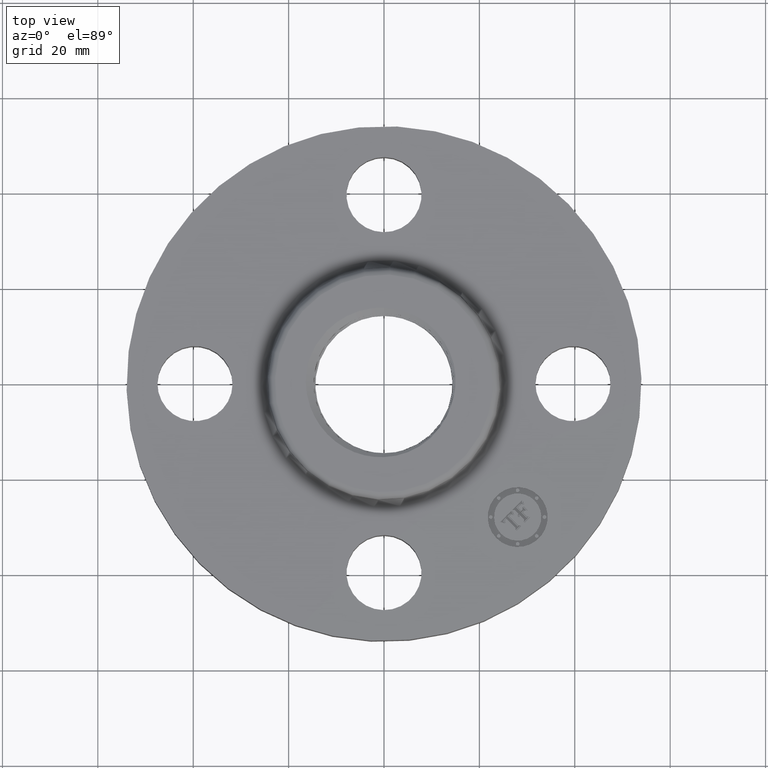
[diagram: clean part render]
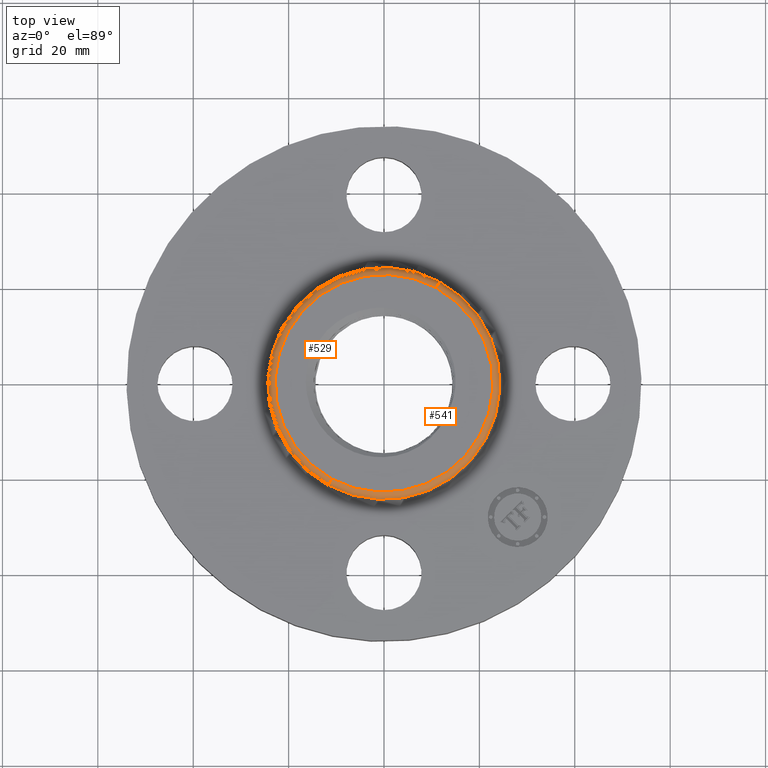
[diagram: same view with one multi-face feature highlighted, each face labeled with its STEP entity id]
A machine part, top view. The highlighted faces form ONE feature: a constant-radius fillet chain: 2 tangent blend faces with common blend radius 1.524 mm. The faces share edges in the B-rep.
Their STEP definitions:
[1] entity #541 (Torus):
#247=AXIS2_PLACEMENT_3D('Circle Axis2P3D',#245,#246,$) ;
#502=AXIS2_PLACEMENT_3D('Torus Axis2P3D',#499,#500,#501) ;
#515=AXIS2_PLACEMENT_3D('Circle Axis2P3D',#513,#514,$) ;
#520=AXIS2_PLACEMENT_3D('Circle Axis2P3D',#518,#519,$) ;
#532=AXIS2_PLACEMENT_3D('Circle Axis2P3D',#530,#531,$) ;
#245=CARTESIAN_POINT('Axis2P3D Location',(0.,0.,0.620000000002)) ;
#249=CARTESIAN_POINT('Vertex',(0.430761345967,0.788503354781,0.620000000002)) ;
#251=CARTESIAN_POINT('Vertex',(-0.430761345967,-0.788503354781,0.620000000002)) ;
#499=CARTESIAN_POINT('Axis2P3D Location',(0.,0.,0.560000000002)) ;
#508=CARTESIAN_POINT('Vertex',(-0.459089865212,-0.840358361433,0.570418890662)) ;
#510=CARTESIAN_POINT('Vertex',(0.459089865212,0.840358361433,0.570418890662)) ;
#513=CARTESIAN_POINT('Axis2P3D Location',(-0.430761345967,-0.788503354781,0.560000000002)) ;
#518=CARTESIAN_POINT('Axis2P3D Location',(0.430761345967,0.788503354781,0.560000000002)) ;
#530=CARTESIAN_POINT('Axis2P3D Location',(0.,0.,0.570418890662)) ;
#246=DIRECTION('Axis2P3D Direction',(0.,0.,-0.0393700787402)) ;
#500=DIRECTION('Axis2P3D Direction',(0.,0.,-0.0393700787402)) ;
#501=DIRECTION('Axis2P3D XDirection',(0.0188750212049,0.0345504945626,0.)) ;
#514=DIRECTION('Axis2P3D Direction',(0.0345504945626,-0.0188750212049,0.)) ;
#519=DIRECTION('Axis2P3D Direction',(-0.0345504945626,0.0188750212049,0.)) ;
#531=DIRECTION('Axis2P3D Direction',(0.,0.,-0.0393700787402)) ;
#536=ORIENTED_EDGE('',*,*,#534,.F.) ;
#537=ORIENTED_EDGE('',*,*,#522,.T.) ;
#538=ORIENTED_EDGE('',*,*,#253,.T.) ;
#539=ORIENTED_EDGE('',*,*,#517,.F.) ;
#541=ADVANCED_FACE('PartBody',(#540),#503,.T.) ;
#248=CIRCLE('generated circle',#247,0.898494784448) ;
#516=CIRCLE('generated circle',#515,0.0600000000002) ;
#521=CIRCLE('generated circle',#520,0.0600000000002) ;
#533=CIRCLE('generated circle',#532,0.957583249629) ;
#503=TOROIDAL_SURFACE('homeo Torus',#502,0.898494784448,0.0600000000002) ;
#253=EDGE_CURVE('',#250,#252,#248,.T.) ;
#517=EDGE_CURVE('',#509,#252,#516,.F.) ;
#522=EDGE_CURVE('',#511,#250,#521,.F.) ;
#534=EDGE_CURVE('',#511,#509,#533,.T.) ;
#535=EDGE_LOOP('',(#536,#537,#538,#539)) ;
#540=FACE_OUTER_BOUND('',#535,.T.) ;
#250=VERTEX_POINT('',#249) ;
#252=VERTEX_POINT('',#251) ;
#509=VERTEX_POINT('',#508) ;
#511=VERTEX_POINT('',#510) ;
[2] entity #529 (Torus):
#256=AXIS2_PLACEMENT_3D('Circle Axis2P3D',#254,#255,$) ;
#502=AXIS2_PLACEMENT_3D('Torus Axis2P3D',#499,#500,#501) ;
#506=AXIS2_PLACEMENT_3D('Circle Axis2P3D',#504,#505,$) ;
#515=AXIS2_PLACEMENT_3D('Circle Axis2P3D',#513,#514,$) ;
#520=AXIS2_PLACEMENT_3D('Circle Axis2P3D',#518,#519,$) ;
#249=CARTESIAN_POINT('Vertex',(0.430761345967,0.788503354781,0.620000000002)) ;
#251=CARTESIAN_POINT('Vertex',(-0.430761345967,-0.788503354781,0.620000000002)) ;
#254=CARTESIAN_POINT('Axis2P3D Location',(0.,0.,0.620000000002)) ;
#499=CARTESIAN_POINT('Axis2P3D Location',(0.,0.,0.560000000002)) ;
#504=CARTESIAN_POINT('Axis2P3D Location',(0.,0.,0.570418890662)) ;
#508=CARTESIAN_POINT('Vertex',(-0.459089865212,-0.840358361433,0.570418890662)) ;
#510=CARTESIAN_POINT('Vertex',(0.459089865212,0.840358361433,0.570418890662)) ;
#513=CARTESIAN_POINT('Axis2P3D Location',(-0.430761345967,-0.788503354781,0.560000000002)) ;
#518=CARTESIAN_POINT('Axis2P3D Location',(0.430761345967,0.788503354781,0.560000000002)) ;
#255=DIRECTION('Axis2P3D Direction',(0.,0.,-0.0393700787402)) ;
#500=DIRECTION('Axis2P3D Direction',(0.,0.,-0.0393700787402)) ;
#501=DIRECTION('Axis2P3D XDirection',(0.0188750212049,0.0345504945626,0.)) ;
#505=DIRECTION('Axis2P3D Direction',(0.,0.,-0.0393700787402)) ;
#514=DIRECTION('Axis2P3D Direction',(0.0345504945626,-0.0188750212049,0.)) ;
#519=DIRECTION('Axis2P3D Direction',(-0.0345504945626,0.0188750212049,0.)) ;
#524=ORIENTED_EDGE('',*,*,#512,.F.) ;
#525=ORIENTED_EDGE('',*,*,#517,.T.) ;
#526=ORIENTED_EDGE('',*,*,#258,.T.) ;
#527=ORIENTED_EDGE('',*,*,#522,.F.) ;
#529=ADVANCED_FACE('PartBody',(#528),#503,.T.) ;
#257=CIRCLE('generated circle',#256,0.898494784448) ;
#507=CIRCLE('generated circle',#506,0.957583249629) ;
#516=CIRCLE('generated circle',#515,0.0600000000002) ;
#521=CIRCLE('generated circle',#520,0.0600000000002) ;
#503=TOROIDAL_SURFACE('homeo Torus',#502,0.898494784448,0.0600000000002) ;
#258=EDGE_CURVE('',#252,#250,#257,.T.) ;
#512=EDGE_CURVE('',#509,#511,#507,.T.) ;
#517=EDGE_CURVE('',#509,#252,#516,.F.) ;
#522=EDGE_CURVE('',#511,#250,#521,.F.) ;
#523=EDGE_LOOP('',(#524,#525,#526,#527)) ;
#528=FACE_OUTER_BOUND('',#523,.T.) ;
#250=VERTEX_POINT('',#249) ;
#252=VERTEX_POINT('',#251) ;
#509=VERTEX_POINT('',#508) ;
#511=VERTEX_POINT('',#510) ;